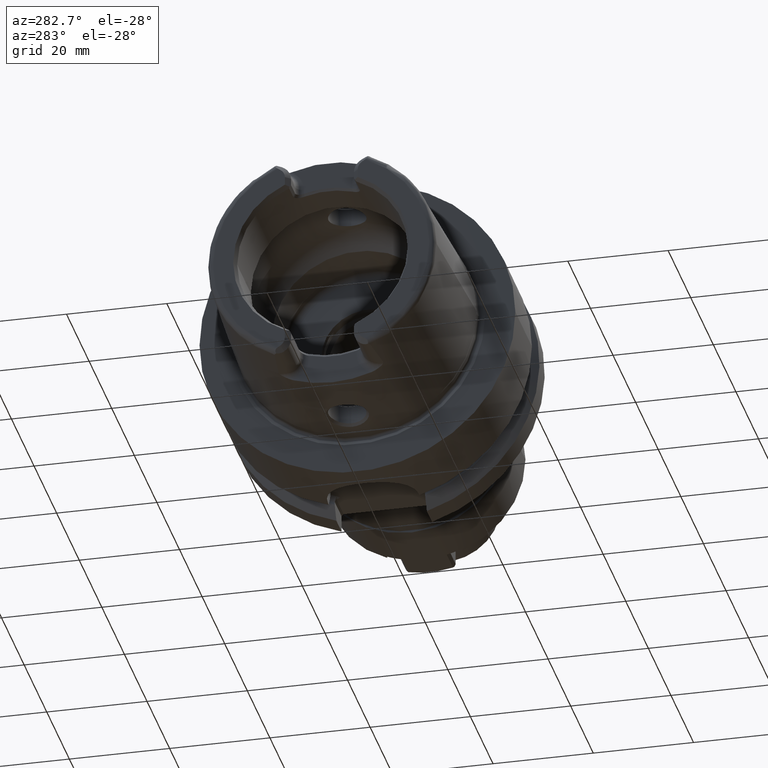
[diagram: clean part render]
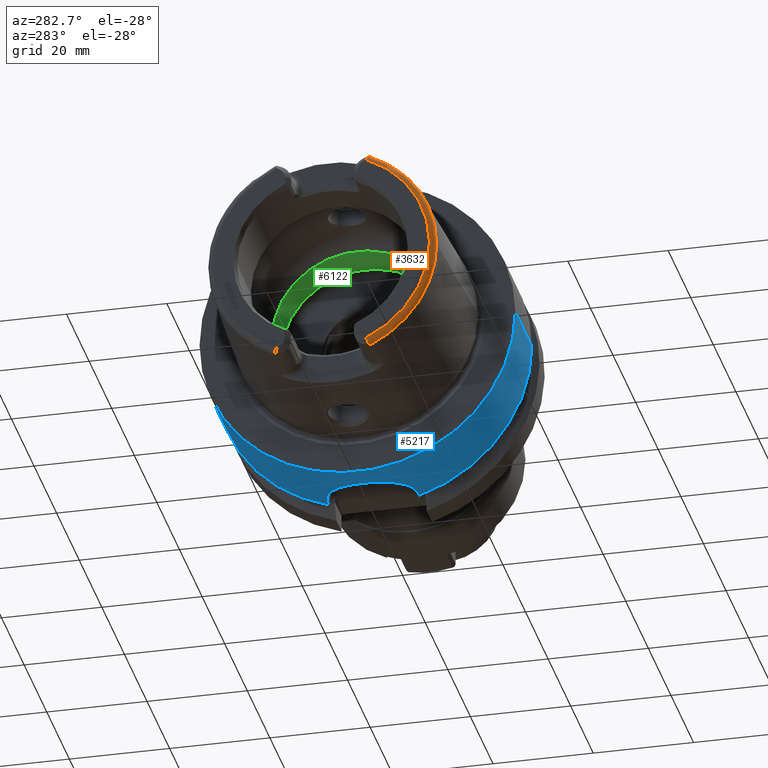
[diagram: same view with three faces highlighted in distinct colors, each labeled with its STEP entity id]
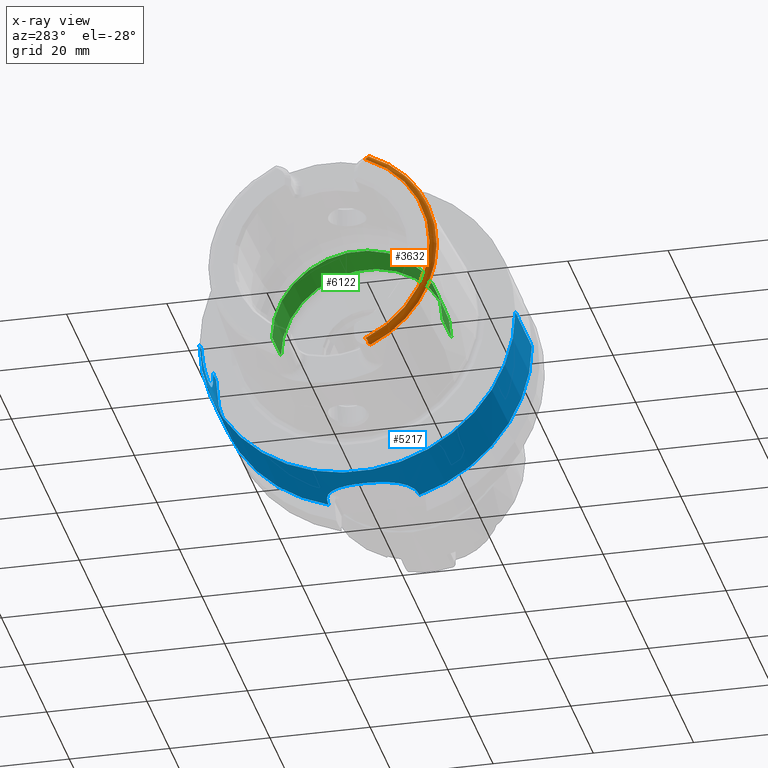
[diagram: x-ray of the same camera — body ghosted, the three highlighted faces saturated]
A machine part, auxiliary view with three faces highlighted in distinct colors.
The next image is the same camera in x-ray (body ghosted, the three faces saturated) — at least one of them is partly hidden behind the body in this view.
Their STEP definitions:

[orange] entity #3632 — the highlighted toroidal blend (fillet) surface has major radius 21.5761 mm and minor (blend) radius 1.2 mm.
#220=CARTESIAN_POINT('',(-3.2E1,-8.752868121732E0,-1.972091419616E1));
#221=CARTESIAN_POINT('',(-3.2E1,-8.806191392107E0,-1.975573003538E1));
#222=CARTESIAN_POINT('',(-3.199307728065E1,-8.906838058357E0,
-1.982971194007E1));
#223=CARTESIAN_POINT('',(-3.195660462370E1,-9.041248816786E0,
-1.996103000182E1));
#224=CARTESIAN_POINT('',(-3.189040233195E1,-9.144202826203E0,
-2.010731482616E1));
#225=CARTESIAN_POINT('',(-3.179646342749E1,-9.206041881340E0,
-2.025988014952E1));
#226=CARTESIAN_POINT('',(-3.168160529070E1,-9.224292971301E0,
-2.040896943202E1));
#227=CARTESIAN_POINT('',(-3.155472601909E1,-9.203436757989E0,
-2.054688136818E1));
#228=CARTESIAN_POINT('',(-3.146778482605E1,-9.169293416595E0,
-2.062842062115E1));
#229=CARTESIAN_POINT('',(-3.142329832300E1,-9.147789680232E0,
-2.066750973939E1));
#231=CARTESIAN_POINT('',(-3.2E1,0.E0,0.E0));
#232=DIRECTION('',(-1.E0,0.E0,0.E0));
#233=DIRECTION('',(0.E0,-4.056746540583E-1,-9.140175463604E-1));
#234=AXIS2_PLACEMENT_3D('',#231,#232,#233);
#236=CARTESIAN_POINT('',(-3.142329832300E1,-9.147789680232E0,2.066750973939E1));
#237=CARTESIAN_POINT('',(-3.146785463680E1,-9.169327161481E0,2.062835928028E1));
#238=CARTESIAN_POINT('',(-3.155487993536E1,-9.203474960428E0,2.054672249220E1));
#239=CARTESIAN_POINT('',(-3.168154941819E1,-9.224273580731E0,2.040902349895E1));
#240=CARTESIAN_POINT('',(-3.179638971845E1,-9.206079697358E0,2.025999286960E1));
#241=CARTESIAN_POINT('',(-3.189041365611E1,-9.144200972137E0,2.010730009138E1));
#242=CARTESIAN_POINT('',(-3.195659880516E1,-9.041253650427E0,1.996104010677E1));
#243=CARTESIAN_POINT('',(-3.199307626724E1,-8.906850532423E0,1.982972129493E1));
#244=CARTESIAN_POINT('',(-3.2E1,-8.806197293584E0,1.975573388857E1));
#245=CARTESIAN_POINT('',(-3.2E1,-8.752868121732E0,1.972091419616E1));
#247=CARTESIAN_POINT('',(-3.132832518959E1,-9.27E0,2.067E1));
#248=CARTESIAN_POINT('',(-3.134450759901E1,-9.250608646179E0,2.067E1));
#249=CARTESIAN_POINT('',(-3.137648814066E1,-9.210816796832E0,2.066962390252E1));
#250=CARTESIAN_POINT('',(-3.140779600340E1,-9.169107457374E0,2.066837887831E1));
#251=CARTESIAN_POINT('',(-3.142329832300E1,-9.147789680232E0,2.066750973939E1));
#253=CARTESIAN_POINT('',(-3.086004306431E1,-9.562027931336E0,2.067E1));
#254=CARTESIAN_POINT('',(-3.089908117982E1,-9.557369764332E0,2.067E1));
#255=CARTESIAN_POINT('',(-3.097780815735E1,-9.539070199208E0,2.067E1));
#256=CARTESIAN_POINT('',(-3.110050491135E1,-9.479694699778E0,2.067E1));
#257=CARTESIAN_POINT('',(-3.121836320761E1,-9.390392333018E0,2.067E1));
#258=CARTESIAN_POINT('',(-3.129230837722E1,-9.313158885277E0,2.067E1));
#259=CARTESIAN_POINT('',(-3.132832518959E1,-9.27E0,2.067E1));
#261=CARTESIAN_POINT('',(-3.086004306431E1,0.E0,0.E0));
#262=DIRECTION('',(1.E0,0.E0,0.E0));
#263=DIRECTION('',(0.E0,-4.198553792210E-1,9.075910205259E-1));
#264=AXIS2_PLACEMENT_3D('',#261,#262,#263);
#266=CARTESIAN_POINT('',(-3.086004306431E1,0.E0,0.E0));
#267=DIRECTION('',(-1.E0,0.E0,0.E0));
#268=DIRECTION('',(0.E0,-4.198553792210E-1,-9.075910205259E-1));
#269=AXIS2_PLACEMENT_3D('',#266,#267,#268);
#271=CARTESIAN_POINT('',(-3.132832518959E1,-9.27E0,-2.067E1));
#272=CARTESIAN_POINT('',(-3.129225458868E1,-9.313223339992E0,-2.067E1));
#273=CARTESIAN_POINT('',(-3.121820569130E1,-9.390519030682E0,-2.067E1));
#274=CARTESIAN_POINT('',(-3.110062643974E1,-9.479612323317E0,-2.067E1));
#275=CARTESIAN_POINT('',(-3.097775607391E1,-9.539101836846E0,-2.067E1));
#276=CARTESIAN_POINT('',(-3.089906305674E1,-9.557371926843E0,-2.067E1));
#277=CARTESIAN_POINT('',(-3.086004306431E1,-9.562027931336E0,-2.067E1));
#279=CARTESIAN_POINT('',(-3.142329832300E1,-9.147789680232E0,
-2.066750973939E1));
#280=CARTESIAN_POINT('',(-3.140773724452E1,-9.169188258734E0,
-2.066838217263E1));
#281=CARTESIAN_POINT('',(-3.137636553203E1,-9.210974971125E0,
-2.066962696388E1));
#282=CARTESIAN_POINT('',(-3.134444355624E1,-9.250685388521E0,-2.067E1));
#283=CARTESIAN_POINT('',(-3.132832518959E1,-9.27E0,-2.067E1));
#2956=CARTESIAN_POINT('',(-3.086004306431E1,-2.277457525750E1,0.E0));
#2957=VERTEX_POINT('',#2956);
#2996=CARTESIAN_POINT('',(-3.086004306431E1,-9.562027931336E0,2.067E1));
#2997=VERTEX_POINT('',#2996);
#2998=VERTEX_POINT('',#259);
#3034=VERTEX_POINT('',#251);
#3043=CARTESIAN_POINT('',(-3.2E1,-8.752868121732E0,1.972091419616E1));
#3044=VERTEX_POINT('',#3043);
#3077=CARTESIAN_POINT('',(-3.086004306431E1,-9.562027931336E0,-2.067E1));
#3078=VERTEX_POINT('',#3077);
#3079=VERTEX_POINT('',#271);
#3140=CARTESIAN_POINT('',(-3.2E1,-8.752868121732E0,-1.972091419616E1));
#3141=VERTEX_POINT('',#3140);
#3142=VERTEX_POINT('',#229);
#3610=CARTESIAN_POINT('',(-3.08E1,0.E0,0.E0));
#3611=DIRECTION('',(1.E0,0.E0,0.E0));
#3612=DIRECTION('',(0.E0,-1.E0,0.E0));
#3613=AXIS2_PLACEMENT_3D('',#3610,#3611,#3612);
#3614=TOROIDAL_SURFACE('',#3613,2.157607835286E1,1.2E0);
#3616=ORIENTED_EDGE('',*,*,#3615,.F.);
#3618=ORIENTED_EDGE('',*,*,#3617,.T.);
#3620=ORIENTED_EDGE('',*,*,#3619,.F.);
#3621=ORIENTED_EDGE('',*,*,#3573,.F.);
#3622=ORIENTED_EDGE('',*,*,#3503,.F.);
#3623=ORIENTED_EDGE('',*,*,#3484,.T.);
#3625=ORIENTED_EDGE('',*,*,#3624,.F.);
#3627=ORIENTED_EDGE('',*,*,#3626,.F.);
#3629=ORIENTED_EDGE('',*,*,#3628,.F.);
#3630=EDGE_LOOP('',(#3616,#3618,#3620,#3621,#3622,#3623,#3625,#3627,#3629));
#3631=FACE_OUTER_BOUND('',#3630,.F.);
#3632=ADVANCED_FACE('',(#3631),#3614,.T.);
#230=B_SPLINE_CURVE_WITH_KNOTS('',3,(#220,#221,#222,#223,#224,#225,#226,#227,
#228,#229),.UNSPECIFIED.,.F.,.F.,(4,1,1,1,1,1,1,4),(0.E0,1.428571428571E-1,
2.857142857143E-1,4.285714285714E-1,5.714285714286E-1,7.142857142857E-1,
8.571428571429E-1,1.E0),.UNSPECIFIED.);
#235=CIRCLE('',#234,2.157607835286E1);
#246=B_SPLINE_CURVE_WITH_KNOTS('',3,(#236,#237,#238,#239,#240,#241,#242,#243,
#244,#245),.UNSPECIFIED.,.F.,.F.,(4,1,1,1,1,1,1,4),(0.E0,1.428571428571E-1,
2.857142857143E-1,4.285714285714E-1,5.714285714286E-1,7.142857142857E-1,
8.571428571429E-1,1.E0),.UNSPECIFIED.);
#252=B_SPLINE_CURVE_WITH_KNOTS('',3,(#247,#248,#249,#250,#251),.UNSPECIFIED.,
.F.,.F.,(4,1,4),(0.E0,5.E-1,1.E0),.UNSPECIFIED.);
#260=B_SPLINE_CURVE_WITH_KNOTS('',3,(#253,#254,#255,#256,#257,#258,#259),
.UNSPECIFIED.,.F.,.F.,(4,1,1,1,4),(0.E0,2.5E-1,5.E-1,7.5E-1,1.E0),
.UNSPECIFIED.);
#265=CIRCLE('',#264,2.277457525750E1);
#270=CIRCLE('',#269,2.277457525750E1);
#278=B_SPLINE_CURVE_WITH_KNOTS('',3,(#271,#272,#273,#274,#275,#276,#277),
.UNSPECIFIED.,.F.,.F.,(4,1,1,1,4),(0.E0,2.5E-1,5.E-1,7.5E-1,1.E0),
.UNSPECIFIED.);
#284=B_SPLINE_CURVE_WITH_KNOTS('',3,(#279,#280,#281,#282,#283),.UNSPECIFIED.,
.F.,.F.,(4,1,4),(0.E0,5.E-1,1.E0),.UNSPECIFIED.);
#3484=EDGE_CURVE('',#2997,#2957,#265,.T.);
#3503=EDGE_CURVE('',#2997,#2998,#260,.T.);
#3573=EDGE_CURVE('',#2998,#3034,#252,.T.);
#3615=EDGE_CURVE('',#3141,#3142,#230,.T.);
#3617=EDGE_CURVE('',#3141,#3044,#235,.T.);
#3619=EDGE_CURVE('',#3034,#3044,#246,.T.);
#3624=EDGE_CURVE('',#3078,#2957,#270,.T.);
#3626=EDGE_CURVE('',#3079,#3078,#278,.T.);
#3628=EDGE_CURVE('',#3142,#3079,#284,.T.);

[blue] entity #5217 — the highlighted cylindrical surface (partial cylindrical patch) has radius 31.5 mm, axis along (1, 0, 0).
#1073=CARTESIAN_POINT('',(-1.421085471520E-14,0.E0,0.E0));
#1074=DIRECTION('',(-1.E0,0.E0,0.E0));
#1075=DIRECTION('',(0.E0,1.E0,0.E0));
#1076=AXIS2_PLACEMENT_3D('',#1073,#1074,#1075);
#1124=CARTESIAN_POINT('',(2.E0,3.15E1,-1.916034746595E-14));
#1126=CARTESIAN_POINT('',(1.2E1,3.15E1,0.E0));
#1588=CARTESIAN_POINT('',(1.39675E1,9.0175E0,-3.018169467989E1));
#1589=CARTESIAN_POINT('',(1.358558656281E1,9.0175E0,-3.018169467989E1));
#1590=CARTESIAN_POINT('',(1.282118465468E1,8.969691357916E0,-3.019604517684E1));
#1591=CARTESIAN_POINT('',(1.165591828593E1,8.743491566228E0,-3.026274300150E1));
#1592=CARTESIAN_POINT('',(1.052276298313E1,8.361963120688E0,-3.037104920547E1));
#1593=CARTESIAN_POINT('',(9.456122836012E0,7.837772025634E0,-3.051135915032E1));
#1594=CARTESIAN_POINT('',(8.470252282138E0,7.180724754911E0,-3.067358430769E1));
#1595=CARTESIAN_POINT('',(7.575631308163E0,6.398050863983E0,-3.084741609441E1));
#1596=CARTESIAN_POINT('',(6.786194961893E0,5.497065304782E0,-3.102161724462E1));
#1597=CARTESIAN_POINT('',(6.130229967676E0,4.511622175765E0,-3.118093411543E1));
#1598=CARTESIAN_POINT('',(5.609342792779E0,3.453031312959E0,-3.131662634576E1));
#1599=CARTESIAN_POINT('',(5.228345621102E0,2.326812347583E0,-3.142101017036E1));
#1600=CARTESIAN_POINT('',(4.999797746036E0,1.164288452435E0,-3.148568890825E1));
#1601=CARTESIAN_POINT('',(4.925086592477E0,-1.642939922344E-4,
-3.150715972921E1));
#1602=CARTESIAN_POINT('',(4.999855898167E0,-1.164866928839E0,
-3.148567217088E1));
#1603=CARTESIAN_POINT('',(5.228566513789E0,-2.327652949522E0,
-3.142094829471E1));
#1604=CARTESIAN_POINT('',(5.609617740094E0,-3.453657849156E0,
-3.131655310854E1));
#1605=CARTESIAN_POINT('',(6.130421690937E0,-4.511937610781E0,
-3.118088635565E1));
#1606=CARTESIAN_POINT('',(6.786402135999E0,-5.497346241188E0,
-3.102156844966E1));
#1607=CARTESIAN_POINT('',(7.576014991373E0,-6.398444919226E0,
-3.084733497918E1));
#1608=CARTESIAN_POINT('',(8.470738074749E0,-7.181093772441E0,
-3.067349724349E1));
#1609=CARTESIAN_POINT('',(9.456668390199E0,-7.838101066607E0,
-3.051127521442E1));
#1610=CARTESIAN_POINT('',(1.052385858790E1,-8.362443708215E0,
-3.037091729406E1));
#1611=CARTESIAN_POINT('',(1.165737665338E1,-8.743869582945E0,
-3.026263280158E1));
#1612=CARTESIAN_POINT('',(1.282210884292E1,-8.969775642486E0,
-3.019601972103E1));
#1613=CARTESIAN_POINT('',(1.358595047E1,-9.0175E0,-3.018169467989E1));
#1614=CARTESIAN_POINT('',(1.39675E1,-9.0175E0,-3.018169467989E1));
#1616=DIRECTION('',(1.E0,0.E0,0.E0));
#1617=VECTOR('',#1616,6.550009252407E-1);
#1618=CARTESIAN_POINT('',(1.39675E1,9.0175E0,-3.018169467989E1));
#1619=LINE('',#1618,#1617);
#1620=CARTESIAN_POINT('',(1.462250092524E1,0.E0,0.E0));
#1621=DIRECTION('',(1.E0,0.E0,0.E0));
#1622=DIRECTION('',(0.E0,2.862698412698E-1,-9.581490374568E-1));
#1623=AXIS2_PLACEMENT_3D('',#1620,#1621,#1622);
#1625=DIRECTION('',(-1.E0,0.E0,0.E0));
#1626=VECTOR('',#1625,2.622500925241E0);
#1627=CARTESIAN_POINT('',(1.462250092524E1,3.15E1,0.E0));
#1628=LINE('',#1627,#1626);
#1629=CARTESIAN_POINT('',(7.E0,3.110064308017E1,-5.E0));
#1630=CARTESIAN_POINT('',(7.237711971861E0,3.110064308017E1,-5.E0));
#1631=CARTESIAN_POINT('',(7.708364793932E0,3.110604176585E1,-4.966603280739E0));
#1632=CARTESIAN_POINT('',(8.409071627816E0,3.113002370339E1,-4.815048141531E0));
#1633=CARTESIAN_POINT('',(9.077383280619E0,3.116768201896E1,-4.566768250610E0));
#1634=CARTESIAN_POINT('',(9.709737219660E0,3.121653000009E1,-4.222389763166E0));
#1635=CARTESIAN_POINT('',(1.028259694179E1,3.127184472959E1,-3.794310232818E0));
#1636=CARTESIAN_POINT('',(1.079381736502E1,3.133002109497E1,-3.283144879213E0));
#1637=CARTESIAN_POINT('',(1.122187341968E1,3.138511895323E1,-2.710559209569E0));
#1638=CARTESIAN_POINT('',(1.156650397528E1,3.143365111660E1,-2.077946235915E0));
#1639=CARTESIAN_POINT('',(1.181475018474E1,3.147092885130E1,-1.410108381556E0));
#1640=CARTESIAN_POINT('',(1.196660689769E1,3.149467147123E1,
-7.086190467967E-1));
#1641=CARTESIAN_POINT('',(1.2E1,3.15E1,-2.377578867780E-1));
#1642=CARTESIAN_POINT('',(1.2E1,3.15E1,0.E0));
#1644=CARTESIAN_POINT('',(2.E0,3.15E1,-1.916034746595E-14));
#1645=CARTESIAN_POINT('',(2.E0,3.15E1,-2.377563632343E-1));
#1646=CARTESIAN_POINT('',(2.033376819090E0,3.149467390288E1,
-7.086329282889E-1));
#1647=CARTESIAN_POINT('',(2.185379667149E0,3.147090888892E1,-1.410571551366E0));
#1648=CARTESIAN_POINT('',(2.433605027219E0,3.143363519165E1,-2.078170817110E0));
#1649=CARTESIAN_POINT('',(2.778328809062E0,3.138509141893E1,-2.710884364051E0));
#1650=CARTESIAN_POINT('',(3.206392404829E0,3.132999596018E1,-3.283376693298E0));
#1651=CARTESIAN_POINT('',(3.717592314676E0,3.127182433739E1,-3.794478939285E0));
#1652=CARTESIAN_POINT('',(4.290556434518E0,3.121650481486E1,-4.222574092482E0));
#1653=CARTESIAN_POINT('',(4.922767506481E0,3.116767216438E1,-4.566833856024E0));
#1654=CARTESIAN_POINT('',(5.591173550853E0,3.113001241939E1,-4.815121163512E0));
#1655=CARTESIAN_POINT('',(6.291762024521E0,3.110604002637E1,-4.966613612597E0));
#1656=CARTESIAN_POINT('',(6.762337956938E0,3.110064308017E1,-5.E0));
#1657=CARTESIAN_POINT('',(7.E0,3.110064308017E1,-5.E0));
#1659=DIRECTION('',(-1.E0,0.E0,1.086605287208E-14));
#1660=VECTOR('',#1659,2.E0);
#1661=CARTESIAN_POINT('',(2.E0,3.15E1,-1.916034746595E-14));
#1662=LINE('',#1661,#1660);
#1663=DIRECTION('',(-1.E0,0.E0,0.E0));
#1664=VECTOR('',#1663,1.462250092524E1);
#1665=CARTESIAN_POINT('',(1.462250092524E1,-3.15E1,0.E0));
#1666=LINE('',#1665,#1664);
#1667=CARTESIAN_POINT('',(1.462250092524E1,0.E0,0.E0));
#1668=DIRECTION('',(1.E0,0.E0,0.E0));
#1669=DIRECTION('',(0.E0,-1.E0,0.E0));
#1670=AXIS2_PLACEMENT_3D('',#1667,#1668,#1669);
#1672=DIRECTION('',(1.E0,0.E0,0.E0));
#1673=VECTOR('',#1672,6.550009252407E-1);
#1674=CARTESIAN_POINT('',(1.39675E1,-9.0175E0,-3.018169467989E1));
#1675=LINE('',#1674,#1673);
#2930=CARTESIAN_POINT('',(-1.421085471520E-14,3.15E1,0.E0));
#2931=CARTESIAN_POINT('',(-1.421085471520E-14,-3.15E1,0.E0));
#2932=VERTEX_POINT('',#2930);
#2933=VERTEX_POINT('',#2931);
#3151=CARTESIAN_POINT('',(1.462250092524E1,-3.15E1,0.E0));
#3152=VERTEX_POINT('',#3151);
#3179=CARTESIAN_POINT('',(7.E0,3.110064308017E1,-5.E0));
#3180=VERTEX_POINT('',#3179);
#3181=VERTEX_POINT('',#1124);
#3182=VERTEX_POINT('',#1126);
#3183=CARTESIAN_POINT('',(1.462250092524E1,3.15E1,0.E0));
#3184=VERTEX_POINT('',#3183);
#3271=CARTESIAN_POINT('',(1.39675E1,-9.0175E0,-3.018169467989E1));
#3272=VERTEX_POINT('',#3271);
#3273=CARTESIAN_POINT('',(1.39675E1,9.0175E0,-3.018169467989E1));
#3274=VERTEX_POINT('',#3273);
#3309=CARTESIAN_POINT('',(1.462250092524E1,9.0175E0,-3.018169467989E1));
#3310=VERTEX_POINT('',#3309);
#3311=CARTESIAN_POINT('',(1.462250092524E1,-9.0175E0,-3.018169467989E1));
#3312=VERTEX_POINT('',#3311);
#5193=CARTESIAN_POINT('',(-3.49E1,0.E0,0.E0));
#5194=DIRECTION('',(1.E0,0.E0,0.E0));
#5195=DIRECTION('',(0.E0,-1.E0,0.E0));
#5196=AXIS2_PLACEMENT_3D('',#5193,#5194,#5195);
#5197=CYLINDRICAL_SURFACE('',#5196,3.15E1);
#5199=ORIENTED_EDGE('',*,*,#5198,.F.);
#5200=ORIENTED_EDGE('',*,*,#4885,.T.);
#5202=ORIENTED_EDGE('',*,*,#5201,.T.);
#5203=ORIENTED_EDGE('',*,*,#4743,.T.);
#5205=ORIENTED_EDGE('',*,*,#5204,.F.);
#5207=ORIENTED_EDGE('',*,*,#5206,.F.);
#5208=ORIENTED_EDGE('',*,*,#4737,.T.);
#5209=ORIENTED_EDGE('',*,*,#4712,.T.);
#5210=ORIENTED_EDGE('',*,*,#4734,.F.);
#5212=ORIENTED_EDGE('',*,*,#5211,.T.);
#5214=ORIENTED_EDGE('',*,*,#5213,.F.);
#5215=EDGE_LOOP('',(#5199,#5200,#5202,#5203,#5205,#5207,#5208,#5209,#5210,#5212,
#5214));
#5216=FACE_OUTER_BOUND('',#5215,.F.);
#5217=ADVANCED_FACE('',(#5216),#5197,.T.);
#1077=CIRCLE('',#1076,3.15E1);
#1615=B_SPLINE_CURVE_WITH_KNOTS('',3,(#1588,#1589,#1590,#1591,#1592,#1593,#1594,
#1595,#1596,#1597,#1598,#1599,#1600,#1601,#1602,#1603,#1604,#1605,#1606,#1607,
#1608,#1609,#1610,#1611,#1612,#1613,#1614),.UNSPECIFIED.,.F.,.F.,(4,1,1,1,1,1,1,
1,1,1,1,1,1,1,1,1,1,1,1,1,1,1,1,1,4),(0.E0,4.166666666667E-2,8.333333333333E-2,
1.25E-1,1.666666666667E-1,2.083333333333E-1,2.5E-1,2.916666666667E-1,
3.333333333333E-1,3.75E-1,4.166666666667E-1,4.583333333333E-1,5.E-1,
5.416666666667E-1,5.833333333333E-1,6.25E-1,6.666666666667E-1,7.083333333333E-1,
7.5E-1,7.916666666667E-1,8.333333333333E-1,8.75E-1,9.166666666667E-1,
9.583333333333E-1,1.E0),.UNSPECIFIED.);
#1624=CIRCLE('',#1623,3.15E1);
#1643=B_SPLINE_CURVE_WITH_KNOTS('',3,(#1629,#1630,#1631,#1632,#1633,#1634,#1635,
#1636,#1637,#1638,#1639,#1640,#1641,#1642),.UNSPECIFIED.,.F.,.F.,(4,1,1,1,1,1,1,
1,1,1,1,4),(0.E0,9.090909090909E-2,1.818181818182E-1,2.727272727273E-1,
3.636363636364E-1,4.545454545455E-1,5.454545454545E-1,6.363636363636E-1,
7.272727272727E-1,8.181818181818E-1,9.090909090909E-1,1.E0),.UNSPECIFIED.);
#1658=B_SPLINE_CURVE_WITH_KNOTS('',3,(#1644,#1645,#1646,#1647,#1648,#1649,#1650,
#1651,#1652,#1653,#1654,#1655,#1656,#1657),.UNSPECIFIED.,.F.,.F.,(4,1,1,1,1,1,1,
1,1,1,1,4),(0.E0,9.090909090909E-2,1.818181818182E-1,2.727272727273E-1,
3.636363636364E-1,4.545454545455E-1,5.454545454545E-1,6.363636363636E-1,
7.272727272727E-1,8.181818181818E-1,9.090909090909E-1,1.E0),.UNSPECIFIED.);
#1671=CIRCLE('',#1670,3.15E1);
#4712=EDGE_CURVE('',#2932,#2933,#1077,.T.);
#4734=EDGE_CURVE('',#3152,#2933,#1666,.T.);
#4737=EDGE_CURVE('',#3181,#2932,#1662,.T.);
#4743=EDGE_CURVE('',#3184,#3182,#1628,.T.);
#4885=EDGE_CURVE('',#3274,#3310,#1619,.T.);
#5198=EDGE_CURVE('',#3274,#3272,#1615,.T.);
#5201=EDGE_CURVE('',#3310,#3184,#1624,.T.);
#5204=EDGE_CURVE('',#3180,#3182,#1643,.T.);
#5206=EDGE_CURVE('',#3181,#3180,#1658,.T.);
#5211=EDGE_CURVE('',#3152,#3312,#1671,.T.);
#5213=EDGE_CURVE('',#3272,#3312,#1675,.T.);

[green] entity #6122 — the highlighted cylindrical surface (partial cylindrical patch) has radius 17 mm, axis along (1, 0, 0).
#2426=DIRECTION('',(-1.E0,0.E0,0.E0));
#2427=VECTOR('',#2426,7.770843802411E0);
#2428=CARTESIAN_POINT('',(7.670843802411E0,1.7E1,0.E0));
#2429=LINE('',#2428,#2427);
#2435=DIRECTION('',(-1.E0,0.E0,0.E0));
#2436=VECTOR('',#2435,7.770843802411E0);
#2437=CARTESIAN_POINT('',(7.670843802411E0,-1.7E1,0.E0));
#2438=LINE('',#2437,#2436);
#2439=CARTESIAN_POINT('',(7.670843802411E0,0.E0,0.E0));
#2440=DIRECTION('',(1.E0,0.E0,0.E0));
#2441=DIRECTION('',(0.E0,1.E0,0.E0));
#2442=AXIS2_PLACEMENT_3D('',#2439,#2440,#2441);
#2464=CARTESIAN_POINT('',(-1.E-1,0.E0,0.E0));
#2465=DIRECTION('',(1.E0,0.E0,0.E0));
#2466=DIRECTION('',(0.E0,1.E0,0.E0));
#2467=AXIS2_PLACEMENT_3D('',#2464,#2465,#2466);
#2963=CARTESIAN_POINT('',(7.670843802411E0,1.7E1,0.E0));
#2965=VERTEX_POINT('',#2963);
#2967=CARTESIAN_POINT('',(7.670843802411E0,-1.7E1,0.E0));
#2969=VERTEX_POINT('',#2967);
#2970=CARTESIAN_POINT('',(-1.E-1,1.7E1,0.E0));
#2971=VERTEX_POINT('',#2970);
#2982=CARTESIAN_POINT('',(-1.E-1,-1.7E1,0.E0));
#2983=VERTEX_POINT('',#2982);
#6110=CARTESIAN_POINT('',(-3.41E1,0.E0,0.E0));
#6111=DIRECTION('',(1.E0,0.E0,0.E0));
#6112=DIRECTION('',(0.E0,-1.E0,0.E0));
#6113=AXIS2_PLACEMENT_3D('',#6110,#6111,#6112);
#6114=CYLINDRICAL_SURFACE('',#6113,1.7E1);
#6115=ORIENTED_EDGE('',*,*,#6100,.T.);
#6117=ORIENTED_EDGE('',*,*,#6116,.T.);
#6118=ORIENTED_EDGE('',*,*,#6103,.F.);
#6119=ORIENTED_EDGE('',*,*,#6074,.F.);
#6120=EDGE_LOOP('',(#6115,#6117,#6118,#6119));
#6121=FACE_OUTER_BOUND('',#6120,.F.);
#6122=ADVANCED_FACE('',(#6121),#6114,.F.);
#2443=CIRCLE('',#2442,1.7E1);
#2468=CIRCLE('',#2467,1.7E1);
#6074=EDGE_CURVE('',#2965,#2969,#2443,.T.);
#6100=EDGE_CURVE('',#2965,#2971,#2429,.T.);
#6103=EDGE_CURVE('',#2969,#2983,#2438,.T.);
#6116=EDGE_CURVE('',#2971,#2983,#2468,.T.);